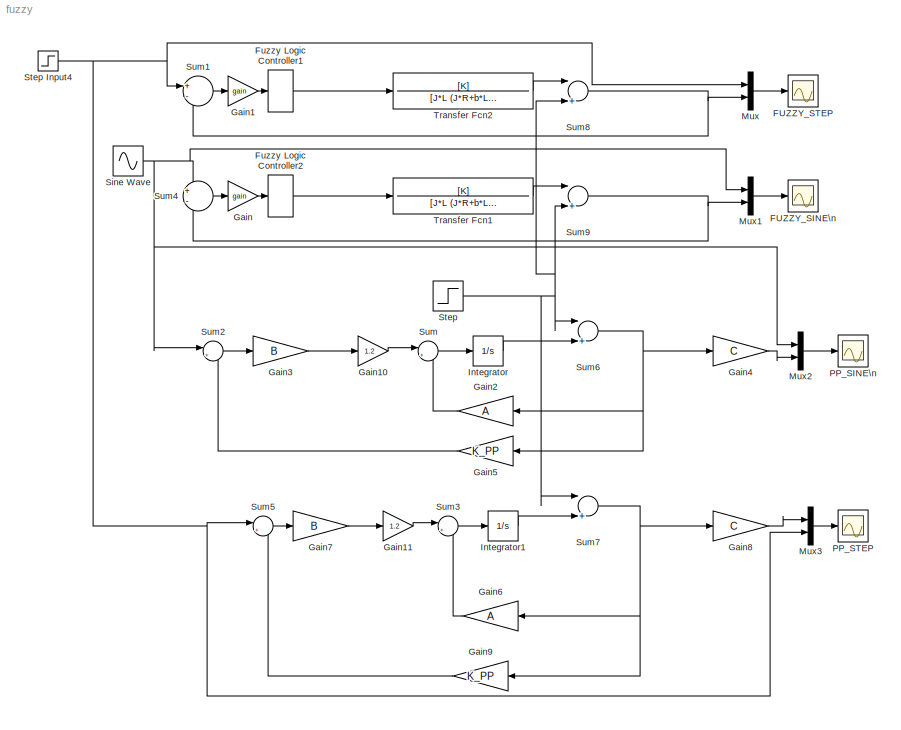
MODEL fuzzy
KIND model
BLOCK [Scope] FUZZY_SINE\n
  Floating = off
  NumInputPorts = 1
  Ports = [1]
  SID = 59
  TimeRange = 0.04303388918773621
  YMax = 1.261470911086717
  YMin = 1.034906695938528
BLOCK [Scope] FUZZY_STEP
  Floating = off
  NumInputPorts = 1
  Ports = [1]
  SID = 17
  SaveName = ScopeData1
  TimeRange = 20
  YMax = 2
  YMin = 0
BLOCK [S-Function] Fuzzy Logic Controller1
  FunctionName = sffis
  Parameters = fismatrix
  Ports = [1, 1]
  SID = 15
BLOCK [S-Function] Fuzzy Logic Controller2
  FunctionName = sffis
  Parameters = fismatrix
  Ports = [1, 1]
  SID = 1
BLOCK [Gain] Gain
  Gain = gain
  OutDataTypeStr = Inherit: Inherit via internal rule
  ParamDataTypeStr = Inherit: Inherit via internal rule
  SID = 13
  SaturateOnIntegerOverflow = off
BLOCK [Gain] Gain1
  Gain = gain
  OutDataTypeStr = Inherit: Inherit via internal rule
  ParamDataTypeStr = Inherit: Inherit via internal rule
  SID = 16
  SaturateOnIntegerOverflow = off
BLOCK [Gain] Gain10
  Gain = 1.2
  OutDataTypeStr = Inherit: Inherit via internal rule
  ParamDataTypeStr = Inherit: Inherit via internal rule
  SID = 64
  SaturateOnIntegerOverflow = off
BLOCK [Gain] Gain11
  Gain = 1.2
  OutDataTypeStr = Inherit: Inherit via internal rule
  ParamDataTypeStr = Inherit: Inherit via internal rule
  SID = 65
  SaturateOnIntegerOverflow = off
BLOCK [Gain] Gain2
  Gain = A
  Multiplication = Matrix(K*u)
  OutDataTypeStr = Inherit: Inherit via internal rule
  ParamDataTypeStr = Inherit: Inherit via internal rule
  SID = 22
  SaturateOnIntegerOverflow = off
BLOCK [Gain] Gain3
  Gain = B
  Multiplication = Matrix(K*u)
  OutDataTypeStr = Inherit: Inherit via internal rule
  ParamDataTypeStr = Inherit: Inherit via internal rule
  SID = 23
  SaturateOnIntegerOverflow = off
BLOCK [Gain] Gain4
  Gain = C
  Multiplication = Matrix(K*u)
  OutDataTypeStr = Inherit: Inherit via internal rule
  ParamDataTypeStr = Inherit: Inherit via internal rule
  SID = 24
  SaturateOnIntegerOverflow = off
BLOCK [Gain] Gain5
  Gain = K_PP
  Multiplication = Matrix(K*u)
  OutDataTypeStr = Inherit: Inherit via internal rule
  ParamDataTypeStr = Inherit: Inherit via internal rule
  SID = 31
  SaturateOnIntegerOverflow = off
BLOCK [Gain] Gain6
  Gain = A
  Multiplication = Matrix(K*u)
  OutDataTypeStr = Inherit: Inherit via internal rule
  ParamDataTypeStr = Inherit: Inherit via internal rule
  SID = 32
  SaturateOnIntegerOverflow = off
BLOCK [Gain] Gain7
  Gain = B
  Multiplication = Matrix(K*u)
  OutDataTypeStr = Inherit: Inherit via internal rule
  ParamDataTypeStr = Inherit: Inherit via internal rule
  SID = 33
  SaturateOnIntegerOverflow = off
BLOCK [Gain] Gain8
  Gain = C
  Multiplication = Matrix(K*u)
  OutDataTypeStr = Inherit: Inherit via internal rule
  ParamDataTypeStr = Inherit: Inherit via internal rule
  SID = 34
  SaturateOnIntegerOverflow = off
BLOCK [Gain] Gain9
  Gain = K_PP
  Multiplication = Matrix(K*u)
  OutDataTypeStr = Inherit: Inherit via internal rule
  ParamDataTypeStr = Inherit: Inherit via internal rule
  SID = 35
  SaturateOnIntegerOverflow = off
BLOCK [Integrator] Integrator
  Ports = [1, 1]
  SID = 29
BLOCK [Integrator] Integrator1
  Ports = [1, 1]
  SID = 36
BLOCK [Mux] Mux
  DisplayOption = bar
  Inputs = 2
  Ports = [2, 1]
  SID = 51
BLOCK [Mux] Mux1
  DisplayOption = bar
  Inputs = 2
  Ports = [2, 1]
  SID = 52
BLOCK [Mux] Mux2
  DisplayOption = bar
  Inputs = 2
  Ports = [2, 1]
  SID = 53
BLOCK [Mux] Mux3
  DisplayOption = bar
  Inputs = 2
  Ports = [2, 1]
  SID = 54
BLOCK [Scope] PP_SINE\n
  Floating = off
  NumInputPorts = 1
  Ports = [1]
  SID = 60
  SaveName = ScopeData4
BLOCK [Scope] PP_STEP
  Floating = off
  NumInputPorts = 1
  Ports = [1]
  SID = 61
  SaveName = ScopeData2
BLOCK [Sin] Sine Wave
  Ports = [0, 1]
  SID = 12
  SampleTime = 0
BLOCK [Step] Step
  SID = 58
  SampleTime = 0
  Time = 5
BLOCK [Step] Step Input4
  SID = 2
  Time = 0
BLOCK [Sum] Sum
  IconShape = round
  InputSameDT = off
  Inputs = |++
  OutDataTypeStr = Inherit: Inherit via internal rule
  Ports = [2, 1]
  SID = 26
  SaturateOnIntegerOverflow = off
BLOCK [Sum] Sum1
  IconShape = round
  Inputs = +-
  Ports = [2, 1]
  SID = 19
BLOCK [Sum] Sum2
  IconShape = round
  InputSameDT = off
  Inputs = |+-
  OutDataTypeStr = Inherit: Inherit via internal rule
  Ports = [2, 1]
  SID = 28
  SaturateOnIntegerOverflow = off
BLOCK [Sum] Sum3
  IconShape = round
  InputSameDT = off
  Inputs = |++
  OutDataTypeStr = Inherit: Inherit via internal rule
  Ports = [2, 1]
  SID = 38
  SaturateOnIntegerOverflow = off
BLOCK [Sum] Sum4
  IconShape = round
  Inputs = +-
  Ports = [2, 1]
  SID = 3
BLOCK [Sum] Sum5
  IconShape = round
  InputSameDT = off
  Inputs = |+-
  OutDataTypeStr = Inherit: Inherit via internal rule
  Ports = [2, 1]
  SID = 39
  SaturateOnIntegerOverflow = off
BLOCK [Sum] Sum6
  InputSameDT = off
  Inputs = |++
  OutDataTypeStr = Inherit: Inherit via internal rule
  Ports = [2, 1]
  SID = 41
  SaturateOnIntegerOverflow = off
BLOCK [Sum] Sum7
  InputSameDT = off
  Inputs = |++
  OutDataTypeStr = Inherit: Inherit via internal rule
  Ports = [2, 1]
  SID = 42
  SaturateOnIntegerOverflow = off
BLOCK [Sum] Sum8
  InputSameDT = off
  Inputs = |++
  OutDataTypeStr = Inherit: Inherit via internal rule
  Ports = [2, 1]
  SID = 43
  SaturateOnIntegerOverflow = off
BLOCK [Sum] Sum9
  InputSameDT = off
  Inputs = |++
  OutDataTypeStr = Inherit: Inherit via internal rule
  Ports = [2, 1]
  SID = 44
  SaturateOnIntegerOverflow = off
BLOCK [TransferFcn] Transfer Fcn1
  Denominator = [J*L (J*R+b*L) K^2+R*b]
  Numerator = [K]
  SID = 7
BLOCK [TransferFcn] Transfer Fcn2
  Denominator = [J*L (J*R+b*L) K^2+R*b]
  Numerator = [K]
  SID = 20
LINE Fuzzy Logic Controller1:1 -> Transfer Fcn2:1
LINE Fuzzy Logic Controller2:1 -> Transfer Fcn1:1
LINE Gain10:1 -> Sum:1
LINE Gain11:1 -> Sum3:1
LINE Gain1:1 -> Fuzzy Logic Controller1:1
LINE Gain2:1 -> Sum:2
LINE Gain3:1 -> Gain10:1
LINE Gain4:1 -> Mux2:2
LINE Gain5:1 -> Sum2:2
LINE Gain6:1 -> Sum3:2
LINE Gain7:1 -> Gain11:1
LINE Gain8:1 -> Mux3:1
LINE Gain9:1 -> Sum5:2
LINE Gain:1 -> Fuzzy Logic Controller2:1
LINE Integrator1:1 -> Sum7:2
LINE Integrator:1 -> Sum6:2
LINE Mux1:1 -> FUZZY_SINE\n:1
LINE Mux2:1 -> PP_SINE\n:1
LINE Mux3:1 -> PP_STEP:1
LINE Mux:1 -> FUZZY_STEP:1
NET Sine Wave:1 -> Mux1:1, Mux2:1, Sum2:1, Sum4:1
NET Step Input4:1 -> Mux3:2, Mux:1, Sum1:1, Sum5:1
NET Step:1 -> Sum6:1, Sum7:1, Sum8:2, Sum9:2
LINE Sum1:1 -> Gain1:1
LINE Sum2:1 -> Gain3:1
LINE Sum3:1 -> Integrator1:1
LINE Sum4:1 -> Gain:1
LINE Sum5:1 -> Gain7:1
NET Sum6:1 -> Gain2:1, Gain4:1, Gain5:1
NET Sum7:1 -> Gain6:1, Gain8:1, Gain9:1
NET Sum8:1 -> Mux:2, Sum1:2
NET Sum9:1 -> Mux1:2, Sum4:2
LINE Sum:1 -> Integrator:1
LINE Transfer Fcn1:1 -> Sum9:1
LINE Transfer Fcn2:1 -> Sum8:1
note: NET lines group one-source signal fan-out (src -> all destinations, sorted); 1:1 wires keep LINE
